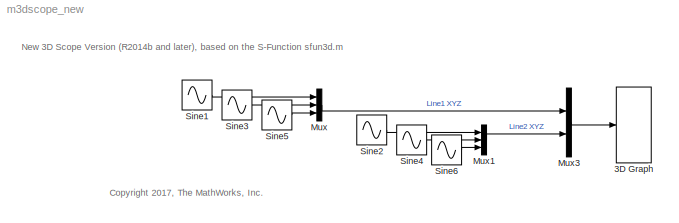
MODEL m3dscope_new
KIND model
BLOCK [S-Function] 3D Graph
  CopyFcn = if exist('sfun3d','file'), sfun3d([],[],[],'CopyBlock'); end
  DeleteFcn = if exist('sfun3d','file'), sfun3d([],[],[],'DeleteBlock'); end
  EnableBusSupport = off
  FunctionName = sfun3d
  LoadFcn = if exist('sfun3d','file'), sfun3d([],[],[],'LoadBlock'); end
  NameChangeFcn = if exist('sfun3d','file'), sfun3d([],[],[],'NameChange'); end
  Parameters = ax,T,np,cp,gd,ls,mk
  Ports = [1]
  SFcnIsStateOwnerBlock = off
  SFunctionDeploymentMode = off
  SID = 1
BLOCK [Mux] Mux
  DisplayOption = bar
  Inputs = 3
  Ports = [3, 1]
  SID = 2
BLOCK [Mux] Mux1
  DisplayOption = bar
  Inputs = 3
  Ports = [3, 1]
  SID = 3
BLOCK [Mux] Mux3
  DisplayOption = bar
  Inputs = 2
  Ports = [2, 1]
  SID = 4
BLOCK [Sin] Sine1
  Ports = [0, 1]
  SID = 5
  SampleTime = 0
BLOCK [Sin] Sine2
  Amplitude = 2
  Frequency = 2
  Ports = [0, 1]
  SID = 6
  SampleTime = 0
BLOCK [Sin] Sine3
  Phase = pi/2
  Ports = [0, 1]
  SID = 7
  SampleTime = 0
BLOCK [Sin] Sine4
  Amplitude = 2
  Frequency = 2
  Phase = pi/2
  Ports = [0, 1]
  SID = 8
  SampleTime = 0
BLOCK [Sin] Sine5
  Amplitude = 1.5
  Frequency = 1.2
  Phase = pi/2
  Ports = [0, 1]
  SID = 9
  SampleTime = 0
BLOCK [Sin] Sine6
  Amplitude = 2.5
  Frequency = 2.2
  Phase = pi/2
  Ports = [0, 1]
  SID = 10
  SampleTime = 0
ANNOTATION (root): \n \n New 3D Scope Version (R2014b and later), based on the S-Function sfun3d.m
ANNOTATION (root): <copyright redacted>
LINE Mux1:1 -> Mux3:2
LINE Mux3:1 -> 3D Graph:1
LINE Mux:1 -> Mux3:1
LINE Sine1:1 -> Mux:1
LINE Sine2:1 -> Mux1:1
LINE Sine3:1 -> Mux:2
LINE Sine4:1 -> Mux1:2
LINE Sine5:1 -> Mux:3
LINE Sine6:1 -> Mux1:3
